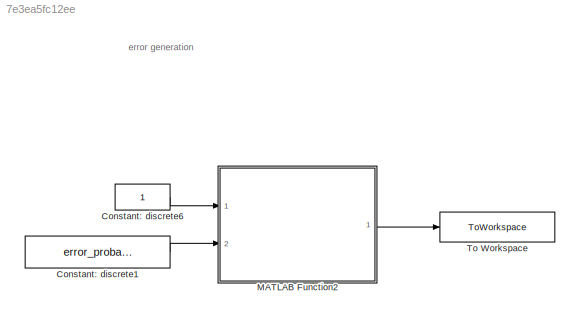
MODEL slx_7e3ea5fc12ee
KIND model
CONFIG AbsTol = auto
CONFIG EnableMultiTasking = off
CONFIG FixedStep = hp
CONFIG MaxStep = auto
CONFIG MinStep = auto
CONFIG RelTol = 1e-3
CONFIG SampleTimeConstraint = Unconstrained
CONFIG Solver = FixedStepAuto
CONFIG SolverName = FixedStepAuto
CONFIG StartTime = 0.0
CONFIG StopTime = Tend
BLOCK [Constant] Constant: discrete1
  SampleTime = Sm
  Value = error_probability
BLOCK [Constant] Constant: discrete6
  SampleTime = Sm
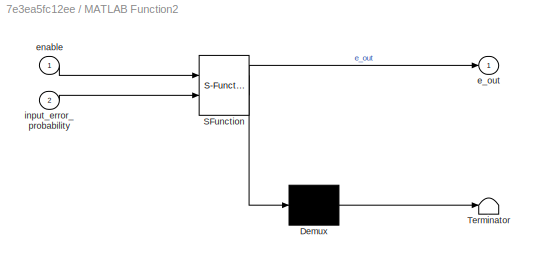
BLOCK [SubSystem] MATLAB Function2
  ErrorFcn = Stateflow.Translate.translate
  PermitHierarchicalResolution = ExplicitOnly
  Ports = [2, 1]
  RequestExecContextInheritance = off
  SFBlockType = MATLAB Function
  SystemSampleTime = Sm
  TreatAsAtomicUnit = on
  Variant = off
BLOCK [Demux] MATLAB Function2/ Demux 
  Outputs = 1
  Ports = [1, 1]
BLOCK [S-Function] MATLAB Function2/ SFunction 
  EnableBusSupport = on
  FunctionName = sf_sfun
  PortCounts = [2 2]
  Ports = [2, 2]
  SFcnIsStateOwnerBlock = off
  SFunctionDeploymentMode = off
  Tag = Stateflow S-Function simulink_random_error 21
BLOCK [Terminator] MATLAB Function2/ Terminator 
BLOCK [Outport] MATLAB Function2/e_out
  IconDisplay = Port number
BLOCK [Inport] MATLAB Function2/enable
  IconDisplay = Port number
BLOCK [Inport] MATLAB Function2/input_error_probability
  IconDisplay = Port number
  Port = 2
BLOCK [ToWorkspace] To Workspace
  FixptAsFi = on
  MaxDataPoints = inf
  Ports = [1]
  SampleTime = Sm
  Save2DSignal = 3-D array (concatenate along third dimension)
  SaveFormat = Timeseries
  VariableName = error_input_sequence
ANNOTATION (root): error generation
LINE Constant: discrete1:1 -> MATLAB Function2:2
LINE Constant: discrete6:1 -> MATLAB Function2:1
LINE MATLAB Function2:1 -> To Workspace:1
CHART MATLAB Function2 states=1 transitions=1
  STATE_LABEL 'eML_blk_kernel()'
  STATE_LABEL 'SCRIPT:\nfunction e_out = error_generation(enable, input_error_probability)\n\npersistent counter;\nif (isempty(counter)) %It does not already exist\ncounter = 1; % initialize with 1\nend\n\n%% test sequence: c1 since there are no errors\nsequence = 0; \n\nif ( counter == length(sequence) )\n    counter = 1;\nelse\n    counter = counter + 1;\nend\n\ne = sequence(counter);\n\n\n%% test random error\nerror_probability =...<+212ch>'
